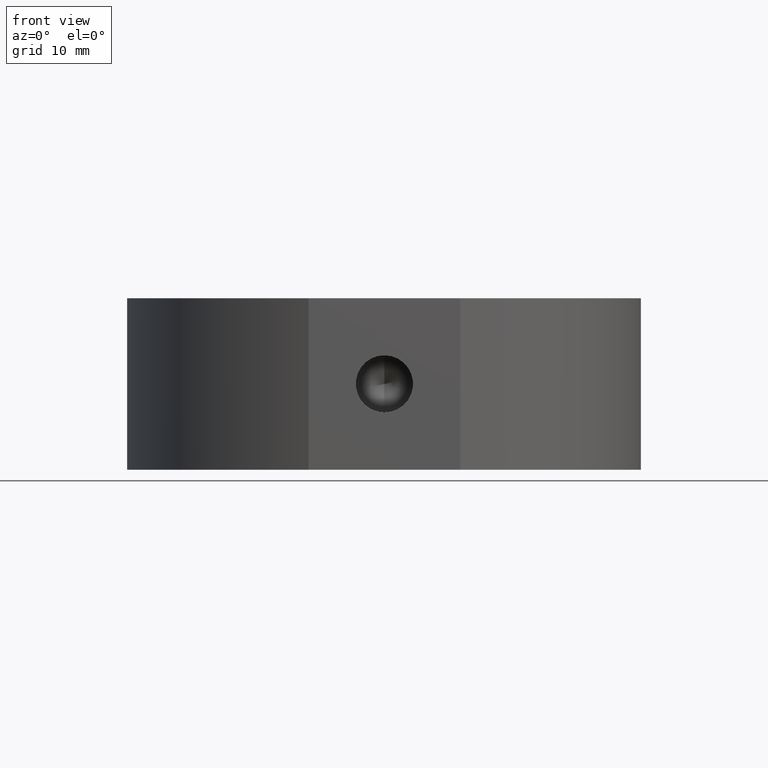
[diagram: clean part render]
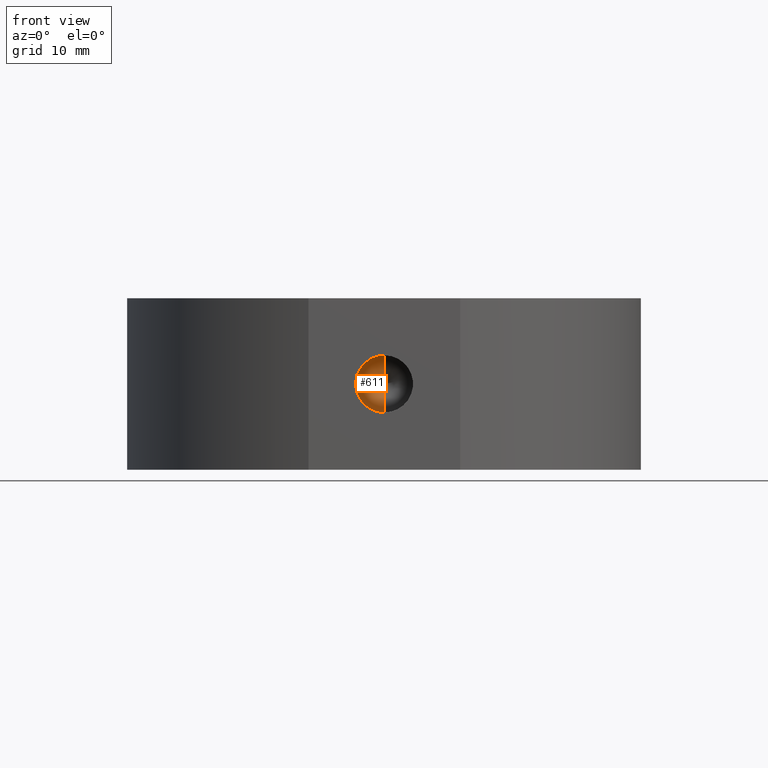
[diagram: same view with one face highlighted and labeled with its STEP entity id]
A machine part, front view. The second image highlights one B-rep face of the part: STEP entity #611.
In plain terms, the highlighted conical surface has half-angle 59 deg.
Its self-contained STEP definition (entity closure, byte-faithful):
#69 = CARTESIAN_POINT ( 'NONE',  ( 5.204170427930421300E-015, -16.00000000000000000, 0.0000000000000000000 ) ) ;
#98 = CARTESIAN_POINT ( 'NONE',  ( 5.204170427930421300E-015, -16.00000000000000000, 0.0000000000000000000 ) ) ;
#101 = VECTOR ( 'NONE', #273, 1000.000000000000000 ) ;
#105 = DIRECTION ( 'NONE',  ( 1.049727191138617700E-016, -0.5150380749100554900, 0.8571673007021115600 ) ) ;
#135 = VERTEX_POINT ( 'NONE', #578 ) ;
#150 = EDGE_LOOP ( 'NONE', ( #244, #1025, #266 ) ) ;
#164 = CONICAL_SURFACE ( 'NONE', #468, 2.499999999999997800, 1.029744258676653000 ) ;
#229 = LINE ( 'NONE', #1071, #101 ) ;
#244 = ORIENTED_EDGE ( 'NONE', *, *, #1125, .F. ) ;
#266 = ORIENTED_EDGE ( 'NONE', *, *, #806, .T. ) ;
#273 = DIRECTION ( 'NONE',  ( 0.0000000000000000000, -0.5150380749100554900, -0.8571673007021115600 ) ) ;
#422 = DIRECTION ( 'NONE',  ( 0.0000000000000000000, 0.0000000000000000000, -1.000000000000000000 ) ) ;
#466 = CARTESIAN_POINT ( 'NONE',  ( 5.510332127717259900E-015, -16.00000000000000000, 2.499999999999997800 ) ) ;
#468 = AXIS2_PLACEMENT_3D ( 'NONE', #69, #602, #422 ) ;
#537 = CIRCLE ( 'NONE', #840, 2.499999999999997800 ) ;
#578 = CARTESIAN_POINT ( 'NONE',  ( 5.204170427930421300E-015, -16.00000000000000000, -2.499999999999997800 ) ) ;
#602 = DIRECTION ( 'NONE',  ( -0.0000000000000000000, -1.000000000000000000, -0.0000000000000000000 ) ) ;
#611 = ADVANCED_FACE ( 'NONE', ( #726 ), #164, .F. ) ;
#632 = DIRECTION ( 'NONE',  ( -0.0000000000000000000, -1.000000000000000000, -0.0000000000000000000 ) ) ;
#726 = FACE_OUTER_BOUND ( 'NONE', #150, .T. ) ;
#803 = VERTEX_POINT ( 'NONE', #970 ) ;
#806 = EDGE_CURVE ( 'NONE', #847, #135, #537, .T. ) ;
#840 = AXIS2_PLACEMENT_3D ( 'NONE', #98, #632, #1064 ) ;
#847 = VERTEX_POINT ( 'NONE', #466 ) ;
#850 = EDGE_CURVE ( 'NONE', #803, #847, #867, .T. ) ;
#867 = LINE ( 'NONE', #1077, #977 ) ;
#970 = CARTESIAN_POINT ( 'NONE',  ( 3.489137931955432100E-015, -14.49784845243109600, 0.0000000000000000000 ) ) ;
#977 = VECTOR ( 'NONE', #105, 1000.000000000000000 ) ;
#1025 = ORIENTED_EDGE ( 'NONE', *, *, #850, .T. ) ;
#1064 = DIRECTION ( 'NONE',  ( 0.0000000000000000000, 0.0000000000000000000, -1.000000000000000000 ) ) ;
#1071 = CARTESIAN_POINT ( 'NONE',  ( 5.204170427930421300E-015, -16.00000000000000000, -2.499999999999997800 ) ) ;
#1077 = CARTESIAN_POINT ( 'NONE',  ( 5.510332127717259900E-015, -16.00000000000000000, 2.499999999999997800 ) ) ;
#1125 = EDGE_CURVE ( 'NONE', #803, #135, #229, .T. ) ;